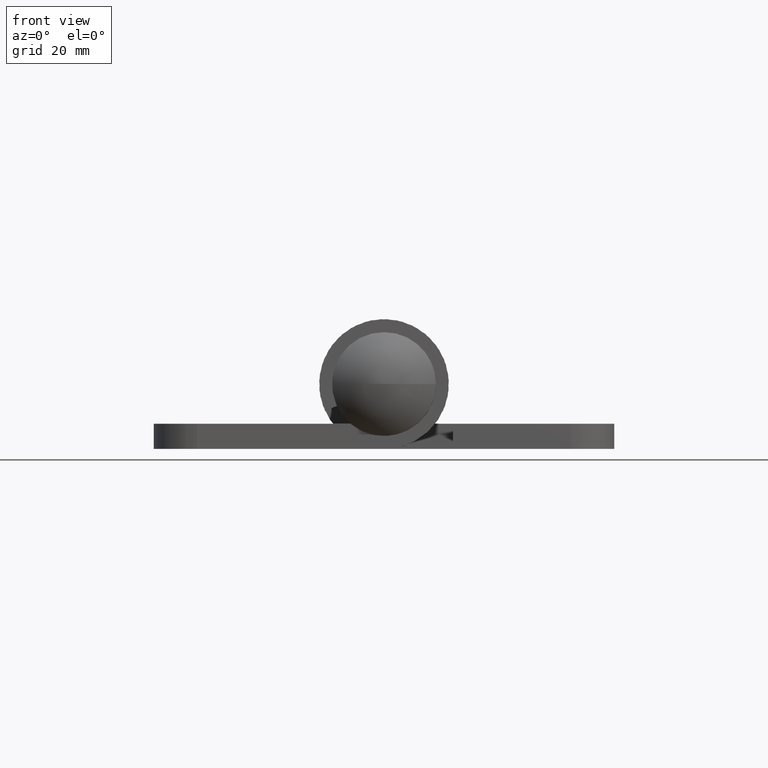
[diagram: clean part render]
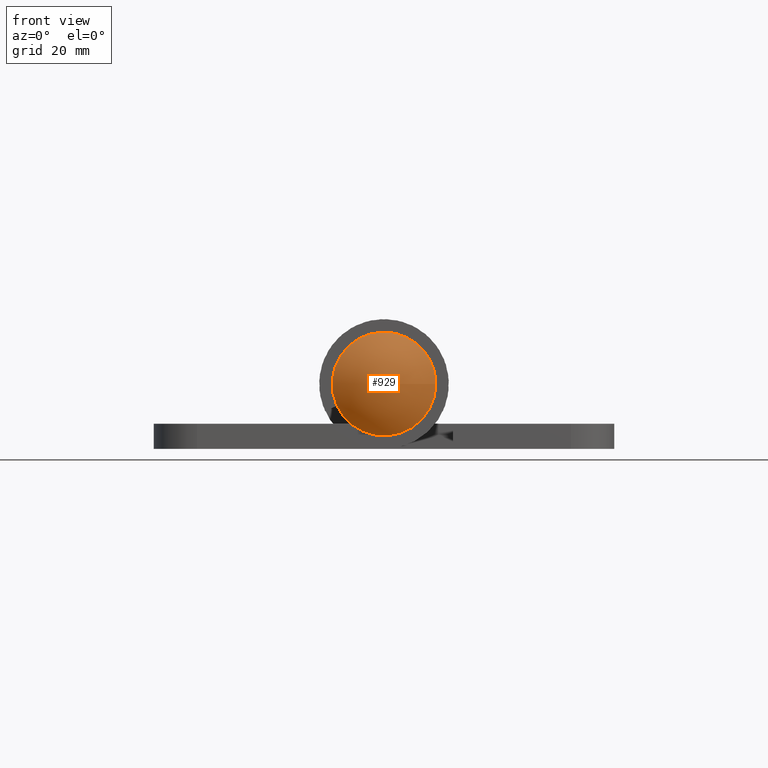
[diagram: same view with one face highlighted and labeled with its STEP entity id]
A machine part, front view. The second image highlights one B-rep face of the part: STEP entity #929.
In plain terms, the highlighted spherical surface has radius 15.8409 mm.
Its self-contained STEP definition (entity closure, byte-faithful):
#23=SPHERICAL_SURFACE('',#1008,15.8409090909092);
#101=FACE_OUTER_BOUND('',#165,.T.);
#165=EDGE_LOOP('',(#724));
#372=CIRCLE('',#1009,12.);
#441=VERTEX_POINT('',#1553);
#545=EDGE_CURVE('',#441,#441,#372,.T.);
#724=ORIENTED_EDGE('',*,*,#545,.F.);
#929=ADVANCED_FACE('',(#101),#23,.T.);
#1008=AXIS2_PLACEMENT_3D('',#1552,#1191,#1192);
#1009=AXIS2_PLACEMENT_3D('',#1554,#1193,#1194);
#1191=DIRECTION('center_axis',(6.12323399573677E-17,0.,1.));
#1192=DIRECTION('ref_axis',(1.,0.,0.));
#1193=DIRECTION('center_axis',(0.,9.25185853854297E-17,-1.));
#1194=DIRECTION('ref_axis',(0.,1.,0.));
#1552=CARTESIAN_POINT('Origin',(0.,15.,47.1590909090908));
#1553=CARTESIAN_POINT('',(0.,27.,57.5));
#1554=CARTESIAN_POINT('Origin',(0.,15.,57.5));